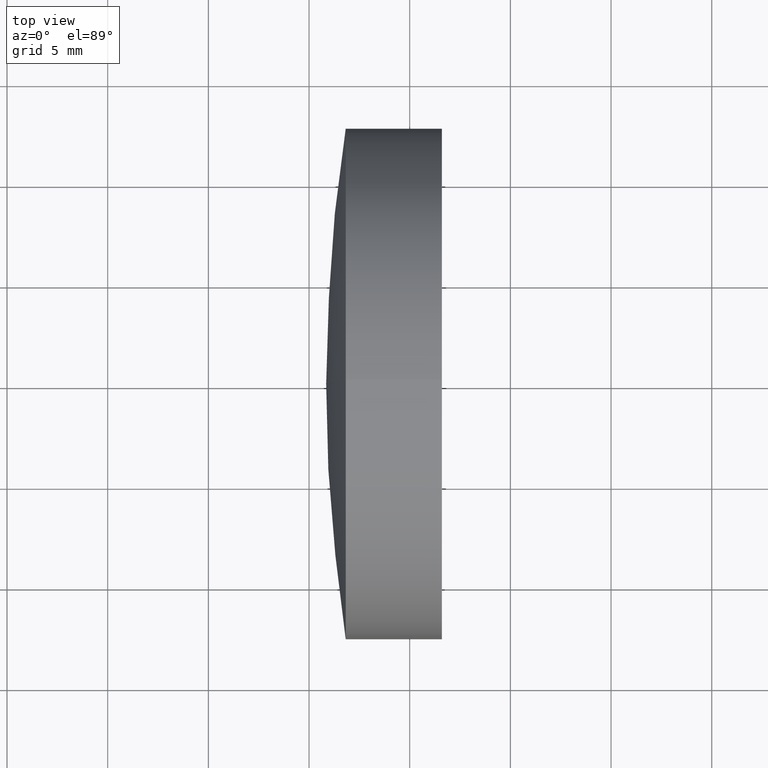
[diagram: clean part render]
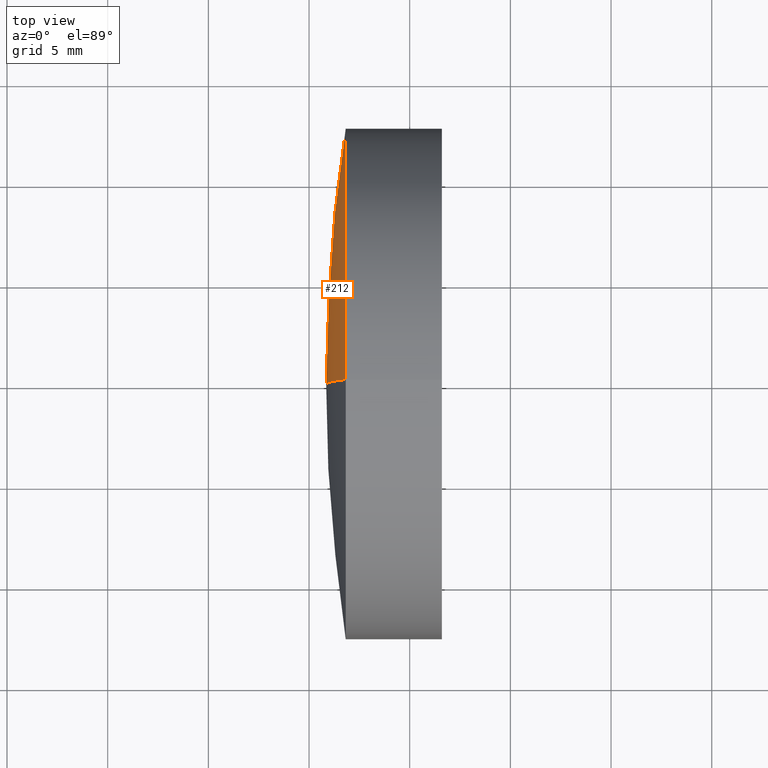
[diagram: same view with one face highlighted and labeled with its STEP entity id]
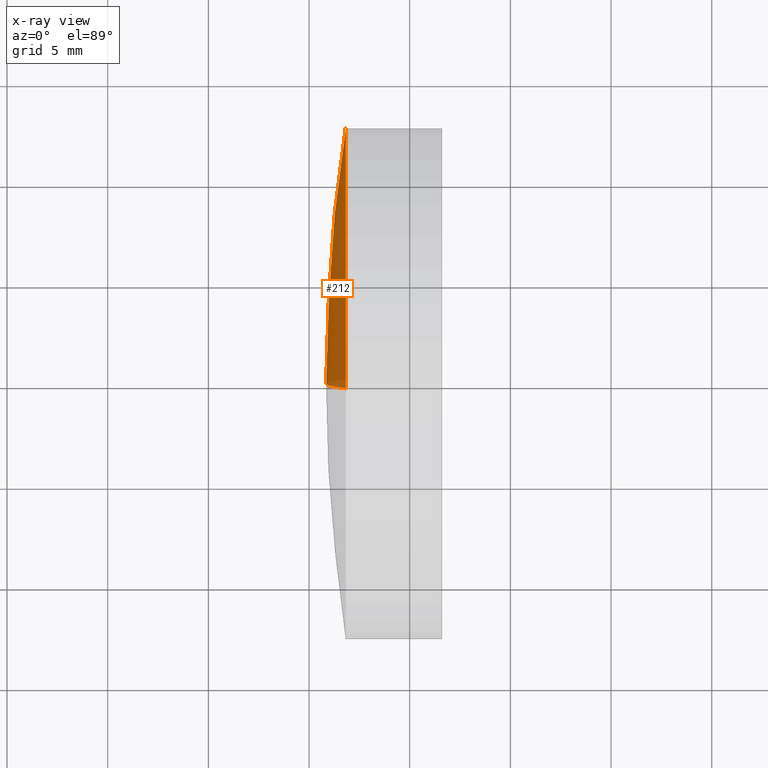
[diagram: x-ray of the same camera — body ghosted, the highlighted face saturated]
A machine part, top view. The second image highlights one B-rep face of the part: STEP entity #212.
The next image is the same camera in x-ray: the body ghosted, the highlighted face saturated — about 3% of this face is hidden behind the body in this view.
In plain terms, the highlighted spherical surface has radius 83.6 mm.
Its self-contained STEP definition (entity closure, byte-faithful):
#4 = ORIENTED_EDGE ( 'NONE', *, *, #344, .F. ) ;
#16 = VERTEX_POINT ( 'NONE', #72 ) ;
#28 = CARTESIAN_POINT ( 'NONE',  ( 366.8207835879254600, 0.0000000000000000000, 0.0000000000000000000 ) ) ;
#29 = CIRCLE ( 'NONE', #272, 12.69999999999971900 ) ;
#30 = AXIS2_PLACEMENT_3D ( 'NONE', #221, #214, #219 ) ;
#34 = CARTESIAN_POINT ( 'NONE',  ( 449.4504997922063600, 0.0000000000000000000, -2.808750536690215900E-013 ) ) ;
#36 = DIRECTION ( 'NONE',  ( 0.0000000000000000000, 0.0000000000000000000, 1.000000000000000000 ) ) ;
#61 = CIRCLE ( 'NONE', #30, 83.59999999999999400 ) ;
#63 = DIRECTION ( 'NONE',  ( -1.000000000000000000, -0.0000000000000000000, -0.0000000000000000000 ) ) ;
#68 = EDGE_CURVE ( 'NONE', #231, #16, #29, .T. ) ;
#71 = SPHERICAL_SURFACE ( 'NONE', #111, 83.59999999999999400 ) ;
#72 = CARTESIAN_POINT ( 'NONE',  ( 366.8207835879254600, 1.555301434917101200E-015, -12.69999999999997600 ) ) ;
#99 = AXIS2_PLACEMENT_3D ( 'NONE', #298, #294, #301 ) ;
#107 = EDGE_CURVE ( 'NONE', #16, #224, #117, .T. ) ;
#111 = AXIS2_PLACEMENT_3D ( 'NONE', #34, #336, #209 ) ;
#117 = CIRCLE ( 'NONE', #99, 83.59999999999999400 ) ;
#130 = CARTESIAN_POINT ( 'NONE',  ( 365.8504997922063400, 0.0000000000000000000, -2.757560300485856500E-013 ) ) ;
#209 = DIRECTION ( 'NONE',  ( 0.0000000000000000000, 0.0000000000000000000, 1.000000000000000000 ) ) ;
#212 = ADVANCED_FACE ( 'NONE', ( #273 ), #71, .T. ) ;
#214 = DIRECTION ( 'NONE',  ( 0.0000000000000000000, -1.000000000000000000, 0.0000000000000000000 ) ) ;
#219 = DIRECTION ( 'NONE',  ( 0.0000000000000000000, 0.0000000000000000000, -1.000000000000000000 ) ) ;
#221 = CARTESIAN_POINT ( 'NONE',  ( 449.4504997922063600, 0.0000000000000000000, -2.808750536690215900E-013 ) ) ;
#224 = VERTEX_POINT ( 'NONE', #130 ) ;
#231 = VERTEX_POINT ( 'NONE', #246 ) ;
#246 = CARTESIAN_POINT ( 'NONE',  ( 366.8207835879254600, 0.0000000000000000000, 12.69999999999969600 ) ) ;
#271 = EDGE_LOOP ( 'NONE', ( #339, #320, #4 ) ) ;
#272 = AXIS2_PLACEMENT_3D ( 'NONE', #28, #63, #36 ) ;
#273 = FACE_OUTER_BOUND ( 'NONE', #271, .T. ) ;
#294 = DIRECTION ( 'NONE',  ( -0.0000000000000000000, 1.000000000000000000, 1.224646799147353200E-016 ) ) ;
#298 = CARTESIAN_POINT ( 'NONE',  ( 449.4504997922063600, 0.0000000000000000000, -2.808750536690215900E-013 ) ) ;
#301 = DIRECTION ( 'NONE',  ( 0.0000000000000000000, -1.224646799147353500E-016, 1.000000000000000000 ) ) ;
#320 = ORIENTED_EDGE ( 'NONE', *, *, #107, .T. ) ;
#336 = DIRECTION ( 'NONE',  ( 0.0000000000000000000, 1.000000000000000000, 0.0000000000000000000 ) ) ;
#339 = ORIENTED_EDGE ( 'NONE', *, *, #68, .T. ) ;
#344 = EDGE_CURVE ( 'NONE', #231, #224, #61, .T. ) ;